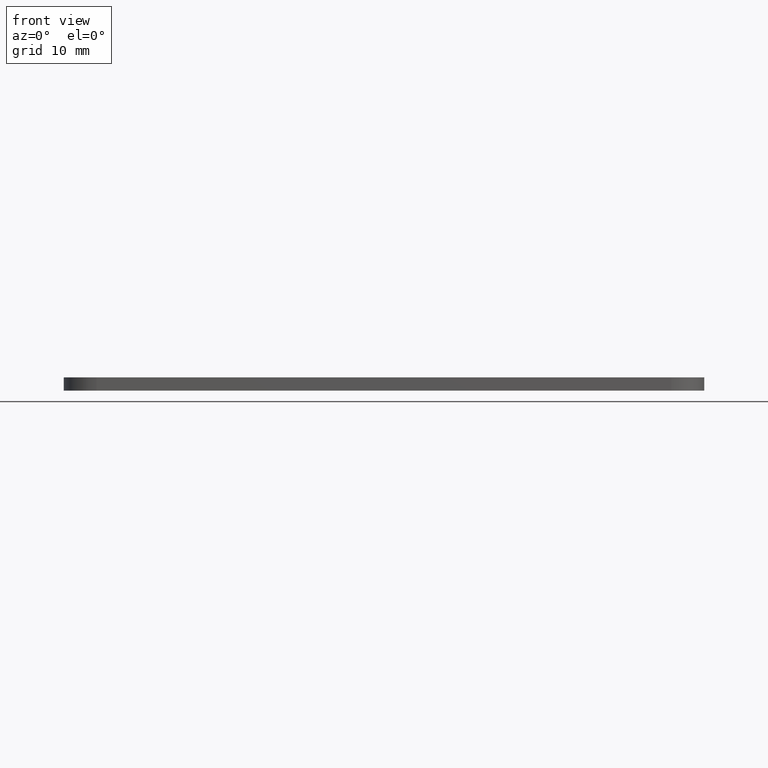
[diagram: clean part render]
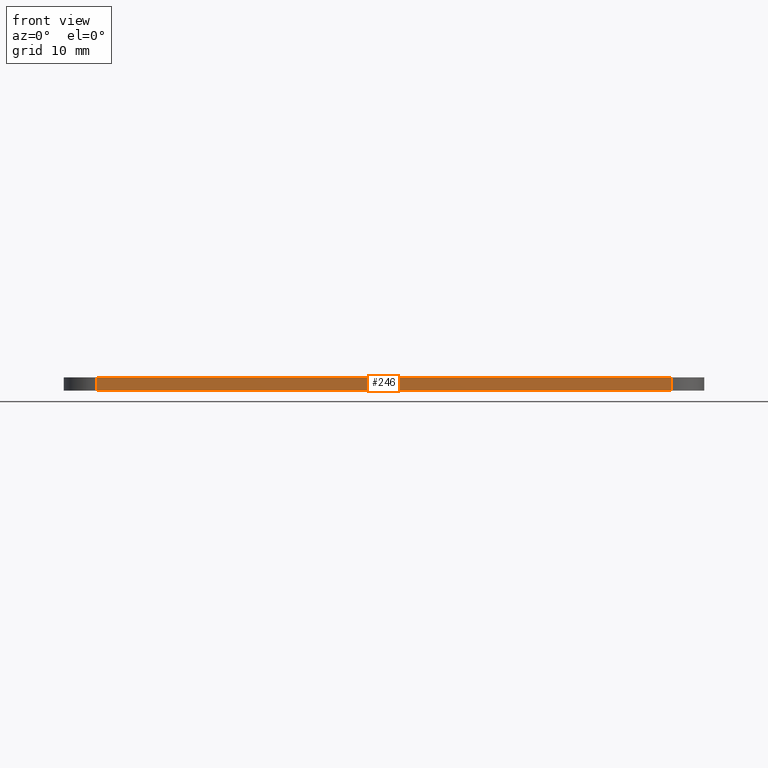
[diagram: same view with one face highlighted and labeled with its STEP entity id]
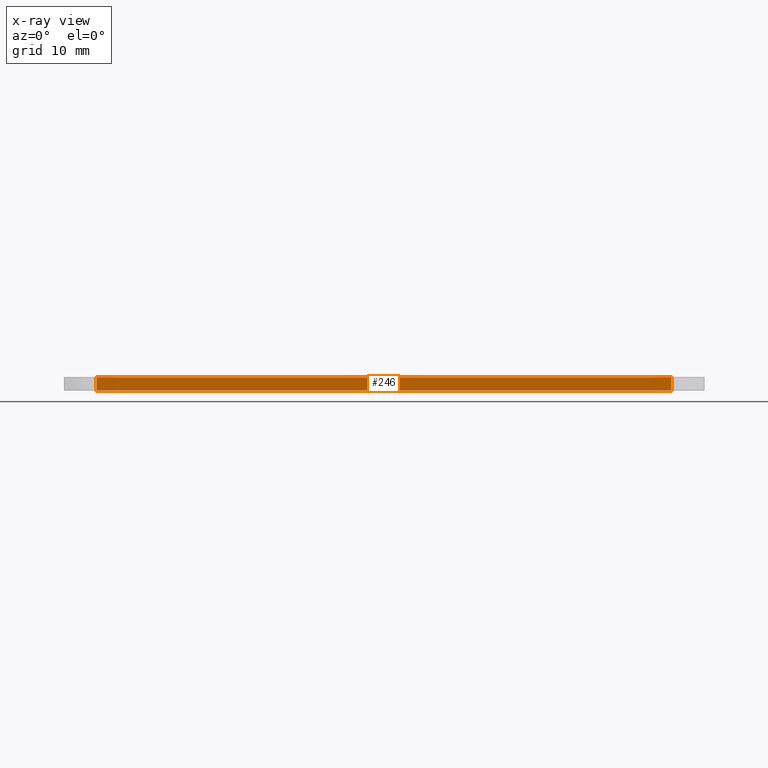
[diagram: x-ray of the same camera — body ghosted, the highlighted face saturated]
A machine part, front view. The second image highlights one B-rep face of the part: STEP entity #246.
The next image is the same camera in x-ray: the body ghosted, the highlighted face saturated — about 0% of this face is hidden behind the body in this view.
In plain terms, the highlighted planar face has unit normal (0, -1, 0).
Its self-contained STEP definition (entity closure, byte-faithful):
#219 = VERTEX_POINT('',#220);
#220 = CARTESIAN_POINT('',(74.,-1.33226762955E-15,1.60000442));
#227 = EDGE_CURVE('',#228,#219,#230,.T.);
#228 = VERTEX_POINT('',#229);
#229 = CARTESIAN_POINT('',(74.,-1.33226762955E-15,0.));
#230 = LINE('',#231,#232);
#231 = CARTESIAN_POINT('',(74.,-1.33226762955E-15,0.));
#232 = VECTOR('',#233,1.);
#233 = DIRECTION('',(0.,0.,1.));
#246 = ADVANCED_FACE('',(#247),#272,.T.);
#247 = FACE_BOUND('',#248,.T.);
#248 = EDGE_LOOP('',(#249,#250,#258,#266));
#249 = ORIENTED_EDGE('',*,*,#227,.T.);
#250 = ORIENTED_EDGE('',*,*,#251,.T.);
#251 = EDGE_CURVE('',#219,#252,#254,.T.);
#252 = VERTEX_POINT('',#253);
#253 = CARTESIAN_POINT('',(4.,-4.440892098501E-16,1.60000442));
#254 = LINE('',#255,#256);
#255 = CARTESIAN_POINT('',(74.,0.,1.60000442));
#256 = VECTOR('',#257,1.);
#257 = DIRECTION('',(-1.,0.,0.));
#258 = ORIENTED_EDGE('',*,*,#259,.F.);
#259 = EDGE_CURVE('',#260,#252,#262,.T.);
#260 = VERTEX_POINT('',#261);
#261 = CARTESIAN_POINT('',(4.,-4.440892098501E-16,0.));
#262 = LINE('',#263,#264);
#263 = CARTESIAN_POINT('',(4.,-4.440892098501E-16,0.));
#264 = VECTOR('',#265,1.);
#265 = DIRECTION('',(0.,0.,1.));
#266 = ORIENTED_EDGE('',*,*,#267,.F.);
#267 = EDGE_CURVE('',#228,#260,#268,.T.);
#268 = LINE('',#269,#270);
#269 = CARTESIAN_POINT('',(74.,0.,0.));
#270 = VECTOR('',#271,1.);
#271 = DIRECTION('',(-1.,0.,0.));
#272 = PLANE('',#273);
#273 = AXIS2_PLACEMENT_3D('',#274,#275,#276);
#274 = CARTESIAN_POINT('',(74.,0.,0.));
#275 = DIRECTION('',(0.,-1.,0.));
#276 = DIRECTION('',(-1.,0.,0.));